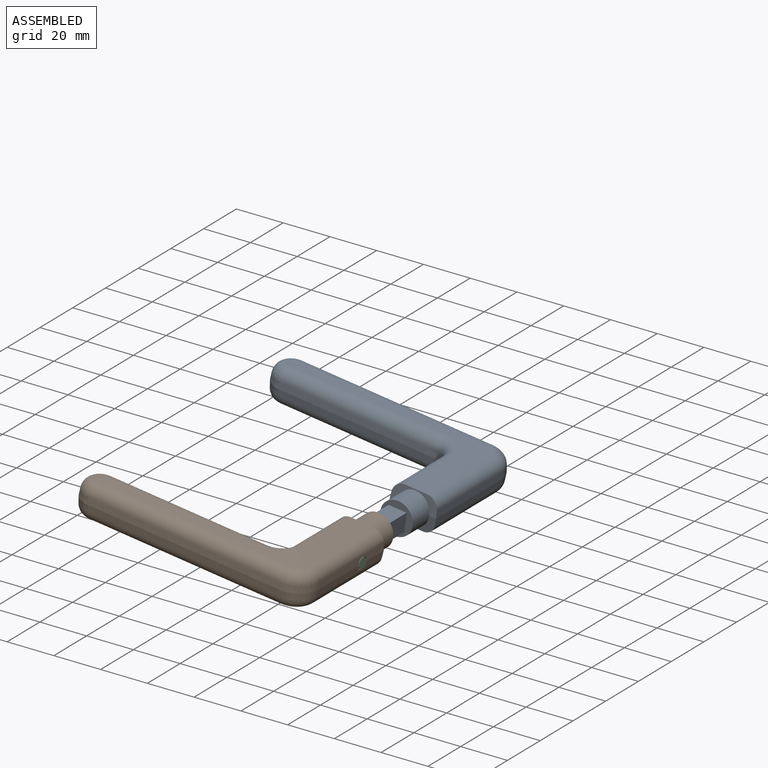
[diagram: assembled view]
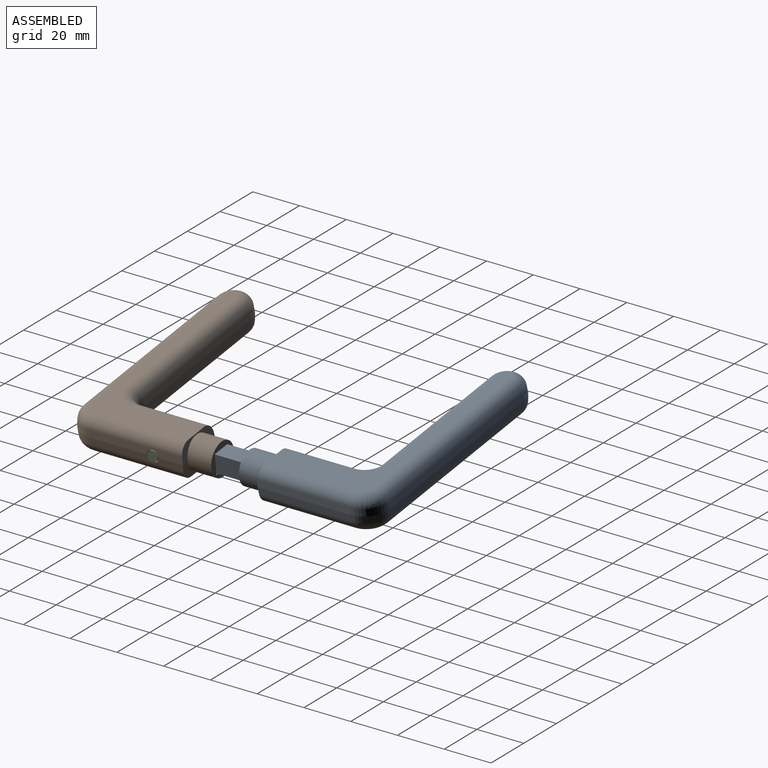
[diagram: assembled view, second angle]
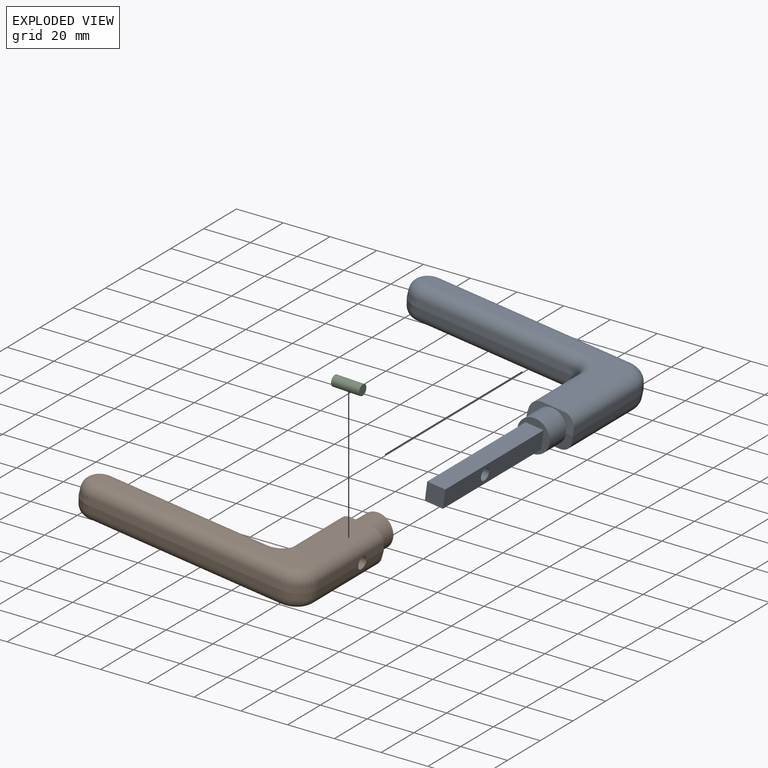
[diagram: exploded view]
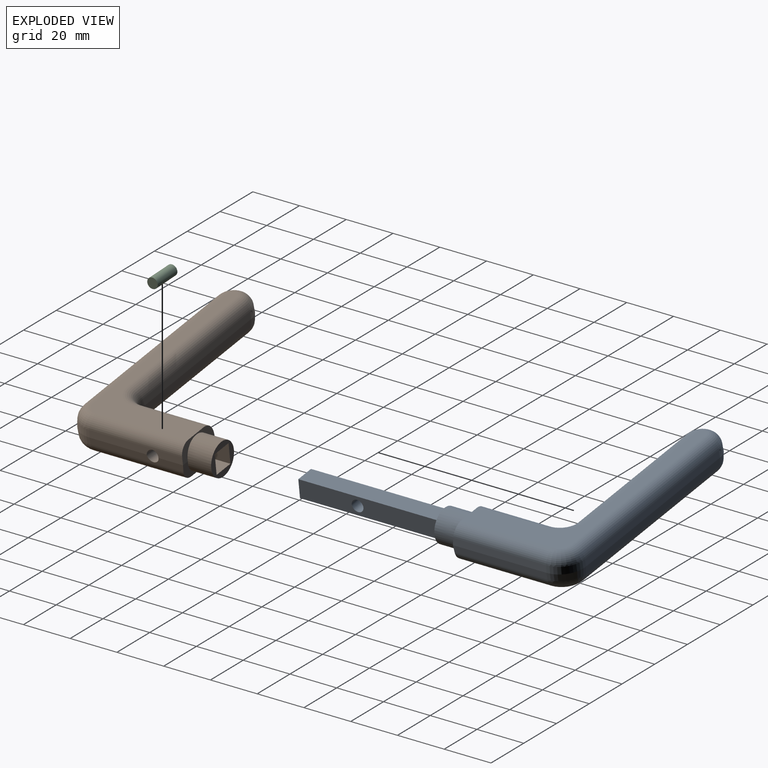
[diagram: exploded view, second angle]
ASSEMBLY  parts=3 mates=2
PART A: 40 faces, bbox 100x120x15 mm
  f0: plane 89.52x44.11mm, normal (0,0,1), area 797.5mm2, adj f7,f32,f33,f34,f35,f36,f37,f38
  f1: cone r=10mm half-angle=5deg, axis (0,0,-1), area 45.7mm2, adj f2,f8,f16,f33
  f2: plane 82.5x2.94mm, normal (0,-1,0.09), area 243.1mm2, adj f1,f3,f15,f34
  f3: cone r=7.5mm half-angle=5deg, axis (0,0,-1), area 68.2mm2, adj f2,f4,f14,f35
  f4: plane 67.5x2.94mm, normal (0,1,0.09), area 198.9mm2, adj f3,f5,f13,f36
  f5: cone r=5mm half-angle=5deg, axis (0,0,1), area 23.7mm2, adj f4,f6,f12,f37
  f6: plane 30x2.94mm, normal (-1,0,0.09), area 88mm2, adj f5,f7,f11,f38
  f7: plane 20x7.5mm, normal (0,1,0.09), area 59.6mm2, adj f0,f6,f8,f10,f18,f32,f38
  f8: plane 40x2.94mm, normal (1,0,0.09), area 117.5mm2, adj f1,f7,f9,f32
  f9: plane 40x2.94mm, normal (1,0,-0.09), area 117.5mm2, adj f8,f10,f16,f25
  f10: plane 20x7.5mm, normal (0,1,-0.09), area 59.6mm2, adj f7,f9,f11,f17,f18,f25,f31
  f11: plane 30x2.94mm, normal (-1,0,-0.09), area 88mm2, adj f6,f10,f12,f31
  f12: cone r=5mm half-angle=5deg, axis (0,0,-1), area 23.7mm2, adj f5,f11,f13,f30
  f13: plane 67.5x2.94mm, normal (0,1,-0.09), area 198.9mm2, adj f4,f12,f14,f29
  f14: cone r=7.5mm half-angle=5deg, axis (0,0,1), area 68.2mm2, adj f3,f13,f15,f28
  f15: plane 82.5x2.94mm, normal (0,-1,-0.09), area 243.1mm2, adj f2,f14,f16,f27
  f16: cone r=10mm half-angle=5deg, axis (0,0,1), area 45.7mm2, adj f1,f9,f15,f26
  f17: plane 89.52x44.11mm, normal (0,0,-1), area 797.5mm2, adj f10,f25,f26,f27,f28,f29,f30,f31
  f18: cylinder r=7mm len=14mm, axis (0,-1,0), area 457mm2, adj f7,f10,f19
  f19: plane 14x14mm, normal (0,1,0), area 93.1mm2, adj f18,f20,f21,f22,f23
  f20: plane 60x7.8mm, normal (-1,0,0), area 448.4mm2, adj f19,f21,f23,f24,f39
  f21: plane 60x7.8mm, normal (0,0,1), area 468mm2, adj f19,f20,f22,f24
  f22: plane 60x7.8mm, normal (1,0,0), area 448.4mm2, adj f19,f21,f23,f24,f39
  f23: plane 60x7.8mm, normal (0,0,-1), area 468mm2, adj f19,f20,f22,f24
  f24: plane 7.8x7.8mm, normal (0,1,0), area 60.8mm2, adj f20,f21,f22,f23
  f25: cylinder r=5mm len=39.74mm, axis (0,-1,0), area 292.9mm2, adj f9,f10,f17,f26
  f26: torus R=4.76mm, axis (0,0,1), area 91.3mm2, adj f16,f17,f25,f27
  f27: cylinder r=5mm len=82.5mm, axis (-1,0,0), area 612mm2, adj f15,f17,f26,f28
  f28: torus R=2.26mm, axis (0,0,1), area 124.4mm2, adj f14,f17,f27,f29
  f29: cylinder r=5mm len=67.5mm, axis (1,0,0), area 500.7mm2, adj f13,f17,f28,f30
  f30: torus R=10.24mm, axis (0,0,1), area 83.4mm2, adj f12,f17,f29,f31
  f31: cylinder r=5mm len=29.74mm, axis (0,1,0), area 218.7mm2, adj f10,f11,f17,f30
  f32: cylinder r=5mm len=39.74mm, axis (0,1,0), area 292.9mm2, adj f0,f7,f8,f33
  f33: torus R=4.76mm, axis (0,0,1), area 91.3mm2, adj f0,f1,f32,f34
  f34: cylinder r=5mm len=82.5mm, axis (1,0,0), area 612mm2, adj f0,f2,f33,f35
  f35: torus R=2.26mm, axis (0,0,1), area 124.4mm2, adj f0,f3,f34,f36
  f36: cylinder r=5mm len=67.5mm, axis (-1,0,0), area 500.7mm2, adj f0,f4,f35,f37
  f37: torus R=10.24mm, axis (0,0,1), area 83.4mm2, adj f0,f5,f36,f38
  f38: cylinder r=5mm len=29.74mm, axis (0,-1,0), area 218.7mm2, adj f0,f6,f7,f37
  f39: cylinder r=2.5mm len=7.8mm, axis (1,0,0), area 122.5mm2, adj f20,f22
PART B: 40 faces, bbox 100.3x60.1x15.1 mm
  f0: plane 14x14mm, normal (0,1,0), area 81.7mm2, adj f19,f20,f21,f22,f23
  f1: plane 89.52x44.11mm, normal (0,0,1), area 797.5mm2, adj f8,f33,f34,f35,f36,f37,f38,f39
  f2: cone r=10mm half-angle=5deg, axis (0,0,-1), area 45.7mm2, adj f3,f9,f17,f34
  f3: plane 82.5x2.94mm, normal (0,-1,0.09), area 243.1mm2, adj f2,f4,f16,f35
  f4: cone r=7.5mm half-angle=5deg, axis (0,0,-1), area 68.2mm2, adj f3,f5,f15,f36
  f5: plane 67.5x2.94mm, normal (0,1,0.09), area 198.9mm2, adj f4,f6,f14,f37
  f6: cone r=5mm half-angle=5deg, axis (0,0,1), area 23.7mm2, adj f5,f7,f13,f38
  f7: plane 30x2.94mm, normal (-1,0,0.09), area 88mm2, adj f6,f8,f12,f39
  f8: plane 20x7.5mm, normal (0,1,0.09), area 59.6mm2, adj f1,f7,f9,f11,f19,f33,f39
  f9: plane 40x2.94mm, normal (1,0,0.09), area 107.7mm2, adj f2,f8,f10,f25,f33
  f10: plane 40x2.94mm, normal (1,0,-0.09), area 107.5mm2, adj f9,f11,f17,f25,f26
  f11: plane 20x7.5mm, normal (0,1,-0.09), area 59.6mm2, adj f8,f10,f12,f18,f19,f26,f32
  f12: plane 30x2.94mm, normal (-1,0,-0.09), area 88mm2, adj f7,f11,f13,f32
  f13: cone r=5mm half-angle=5deg, axis (0,0,-1), area 23.7mm2, adj f6,f12,f14,f31
  f14: plane 67.5x2.94mm, normal (0,1,-0.09), area 198.9mm2, adj f5,f13,f15,f30
  f15: cone r=7.5mm half-angle=5deg, axis (0,0,1), area 68.2mm2, adj f4,f14,f16,f29
  f16: plane 82.5x2.94mm, normal (0,-1,-0.09), area 243.1mm2, adj f3,f15,f17,f28
  f17: cone r=10mm half-angle=5deg, axis (0,0,1), area 45.7mm2, adj f2,f10,f16,f27
  f18: plane 89.52x44.11mm, normal (0,0,-1), area 797.5mm2, adj f11,f26,f27,f28,f29,f30,f31,f32
  f19: cylinder r=7mm len=14mm, axis (0,-1,0), area 457mm2, adj f0,f8,f11
  f20: plane 50x8.5mm, normal (1,0,0), area 425mm2, adj f0,f21,f23,f24
  f21: plane 50x8.5mm, normal (0,0,-1), area 425mm2, adj f0,f20,f22,f24
  f22: plane 50.09x8.59mm, normal (-1,0,0), area 405.3mm2, adj f0,f21,f23,f24,f25
  f23: plane 50x8.5mm, normal (0,0,1), area 425mm2, adj f0,f20,f22,f24
  f24: plane 8.5x8.5mm, normal (0,1,0), area 72.2mm2, adj f20,f21,f22,f23
  f25: cylinder r=2.5mm len=6.4mm, axis (1,0,0.09), area 88.6mm2, adj f9,f10,f22
  f26: cylinder r=5mm len=39.74mm, axis (0,-1,0), area 292.9mm2, adj f10,f11,f18,f27
  f27: torus R=4.76mm, axis (0,0,1), area 91.3mm2, adj f17,f18,f26,f28
  f28: cylinder r=5mm len=82.5mm, axis (-1,0,0), area 612mm2, adj f16,f18,f27,f29
  f29: torus R=2.26mm, axis (0,0,1), area 124.4mm2, adj f15,f18,f28,f30
  f30: cylinder r=5mm len=67.5mm, axis (1,0,0), area 500.7mm2, adj f14,f18,f29,f31
  f31: torus R=10.24mm, axis (0,0,1), area 83.4mm2, adj f13,f18,f30,f32
  f32: cylinder r=5mm len=29.74mm, axis (0,1,0), area 218.7mm2, adj f11,f12,f18,f31
  f33: cylinder r=5mm len=39.74mm, axis (0,1,0), area 292.9mm2, adj f1,f8,f9,f34
  f34: torus R=4.76mm, axis (0,0,1), area 91.3mm2, adj f1,f2,f33,f35
  f35: cylinder r=5mm len=82.5mm, axis (1,0,0), area 612mm2, adj f1,f3,f34,f36
  f36: torus R=2.26mm, axis (0,0,1), area 124.4mm2, adj f1,f4,f35,f37
  f37: cylinder r=5mm len=67.5mm, axis (-1,0,0), area 500.7mm2, adj f1,f5,f36,f38
  f38: torus R=10.24mm, axis (0,0,1), area 83.4mm2, adj f1,f6,f37,f39
  f39: cylinder r=5mm len=29.74mm, axis (0,-1,0), area 218.7mm2, adj f1,f7,f8,f38
PART C: 3 faces, bbox 12x4.5x4.5 mm
  f0: plane 4.5x4.5mm, normal (-1,0,0), area 15.9mm2, adj f2
  f1: plane 4.5x4.5mm, normal (1,0,0), area 15.9mm2, adj f2
  f2: cylinder r=2.25mm len=12mm, axis (1,0,0), area 169.6mm2, adj f0,f1
PLACE A rot(axis=(1,0,-0.07),180deg) t=(74.29,31.44,52.8)mm
PLACE B rot(axis=(0,1,0),7.6deg) t=(86.17,-18.51,51.22)mm fixed
PLACE C rot(axis=(0,1,0),2.6deg) t=(96.13,-31.51,49.91)mm
MATE slider C.f2 <-> B.f25  axis (1,0,-0.04) through (96.13,-31.51,49.91)mm
MATE slider A.f18 <-> B.f19  axis (0,-1,0) through (86.17,-56.65,51.22)mm
